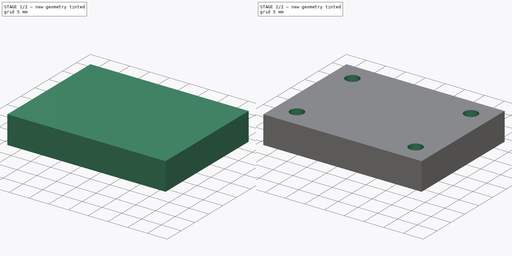
[diagram: build sequence overview — one tinted view per stage of 2, left to right]
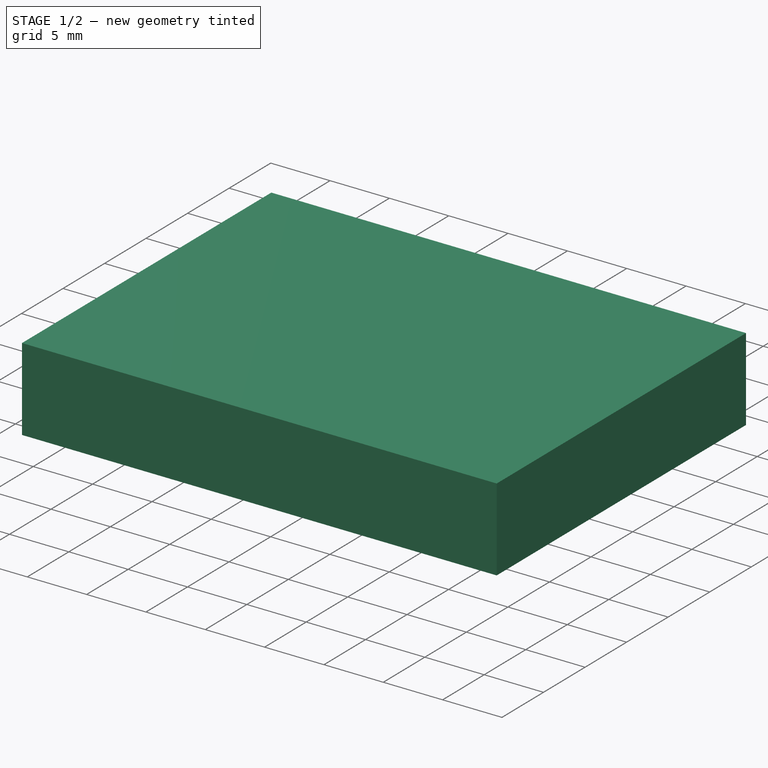
[diagram: stage 1 of 2 — iso view after this stage's code; geometry added in this stage tinted green]
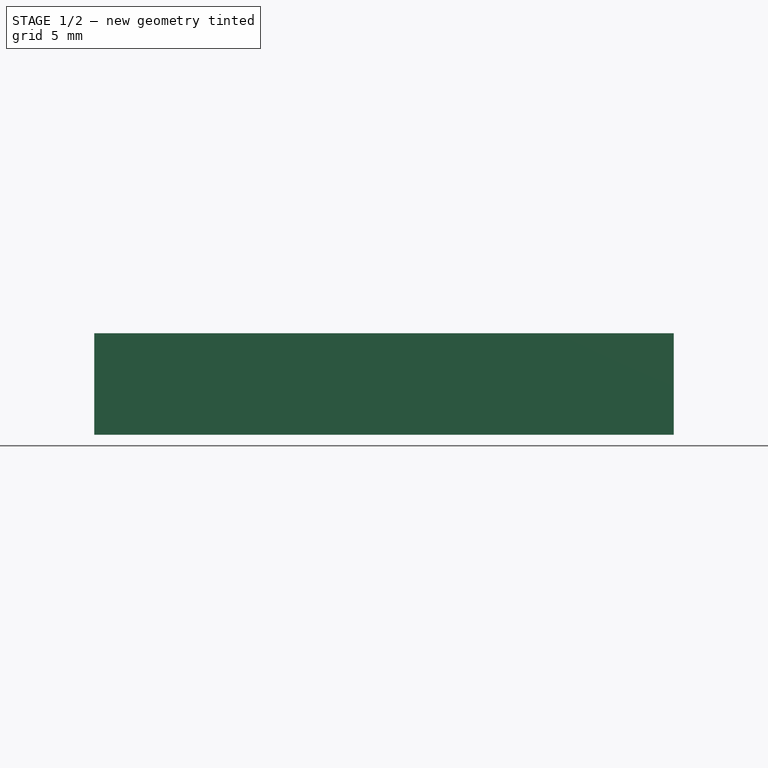
[diagram: stage 1 of 2 — front view after this stage's code; geometry added in this stage tinted green]
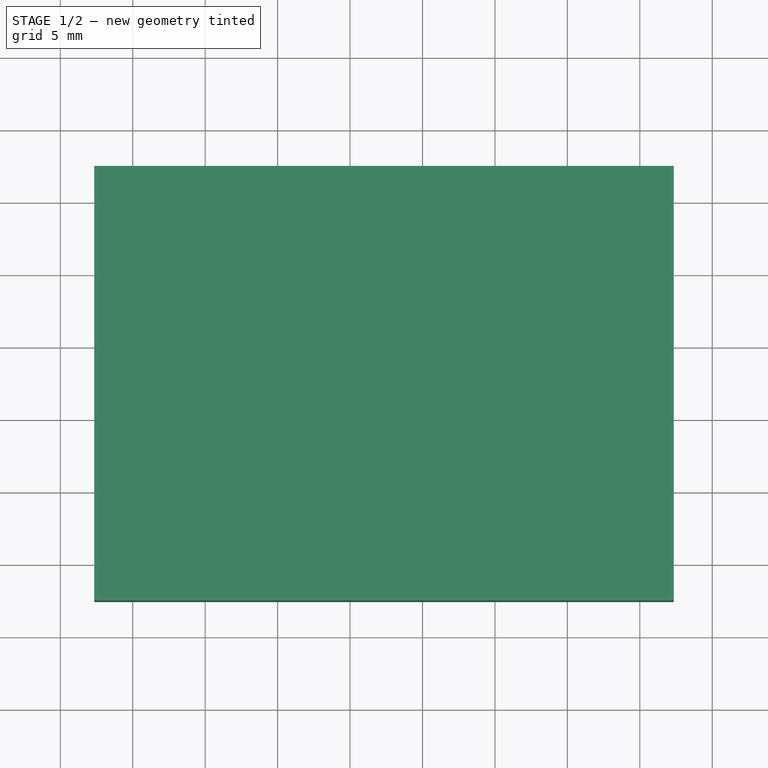
[diagram: stage 1 of 2 — top view after this stage's code; geometry added in this stage tinted green]
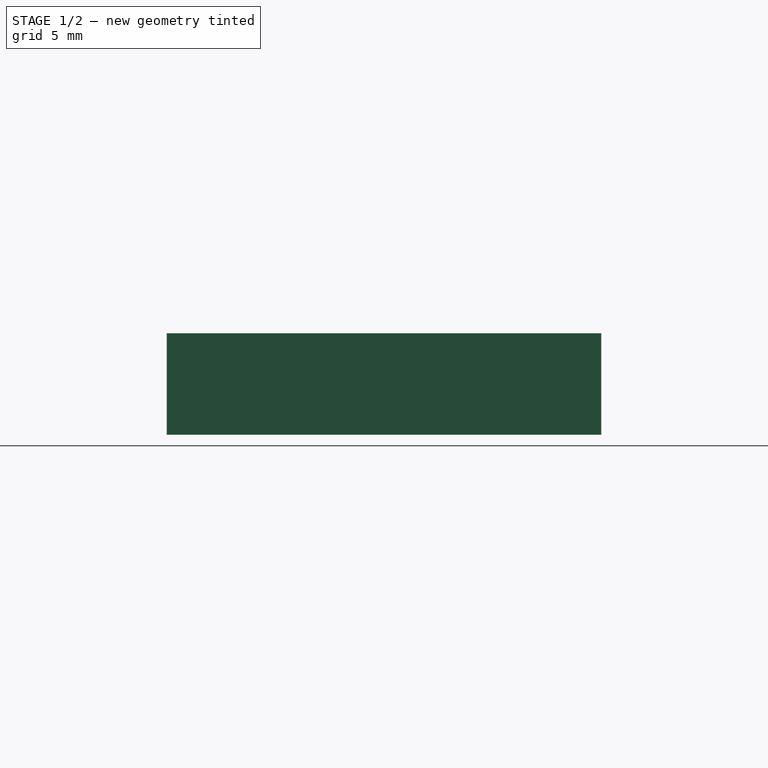
[diagram: stage 1 of 2 — right view after this stage's code; geometry added in this stage tinted green]
FCSTD DOCUMENT  (FreeCAD 1.0R39319 (Git))
Label: RollerMod
License: All rights reserved
LicenseURL: https://en.wikipedia.org/wiki/All_rights_reserved
objects: Part::Feature×2, Sketcher::SketchObject×2, App::Part×1, PartDesign::ShapeBinder×1, PartDesign::Pad×1, PartDesign::Pocket×1, PartDesign::Body×1
note: 14 computed .brp shape members not serialized (recipe doc carries the construction recipe); baked Part::Feature solids carry a one-line shape summary decoded from their .brp

FEATURE [Part::Feature] Part__Feature  label="Roller_Sphere"
  Placement = pos=(-17.6587,-2.55184,5.07136) rot=(0,1,0;0.261799rad)
  shape: bbox 20 x 20 x 20 mm, 1 faces (baked)
FEATURE [Part::Feature] Part__Feature001  label="Roller_Housing"
  Placement = pos=(-17.6587,-2.55184,5.07136) rot=(0,0,1;0rad)
  shape: bbox 40.01 x 30.12 x 20.31 mm, 40 faces (baked)
FEATURE [App::Part] Assembly_1  label="Assembly 1"
  Group = -> [Part__Feature,Part__Feature001]
  Origin = -> Origin
FEATURE [PartDesign::ShapeBinder] CopyPart__Feature001
  Placement = pos=(-17.6587,-2.55184,5.07136) rot=(0,0,1;0rad)
  TraceSupport = false
FEATURE [Sketcher::SketchObject] Sketch
  ArcFitTolerance = 1e-06
  AttachmentSupport = -> [CopyPart__Feature001]
  FullyConstrained = true
  MakeInternals = false
  MapMode = 5
  Placement = pos=(-17.6587,-2.55184,-8.22864) rot=(1,0,0;3.14159rad)
  sketch-geometry (4):
    g0: LineSegment StartX=-20 StartY=15 StartZ=0 EndX=-20 EndY=-15 EndZ=0
    g1: LineSegment StartX=-20 StartY=-15 StartZ=0 EndX=20 EndY=-15 EndZ=0
    g2: LineSegment StartX=20 StartY=-15 StartZ=0 EndX=20 EndY=15 EndZ=0
    g3: LineSegment StartX=20 StartY=15 StartZ=0 EndX=-20 EndY=15 EndZ=0
  constraints (11):
    c: Coincident(g0,g1)
    c: Coincident(g1,g2)
    c: Coincident(g2,g3)
    c: Coincident(g3,g0)
    c: Vertical(g0)
    c: Vertical(g2)
    c: Horizontal(g1)
    c: Horizontal(g3)
    c: Distance(g1) = 40
    c: Distance(g2) = 30
    c: Symmetric(g1,g0,g-1)
FEATURE [PartDesign::Pad] Pad
  Direction = (0,0,-1)
  Length = 7
  Length2 = 10
  Placement = pos=(-17.6587,-2.55184,5.07136) rot=(0,0,1;0rad)
  Profile = -> Sketch
  ReferenceAxis = -> Sketch [N_Axis]
  Refine = true
  Suppressed = false
  Type = 0
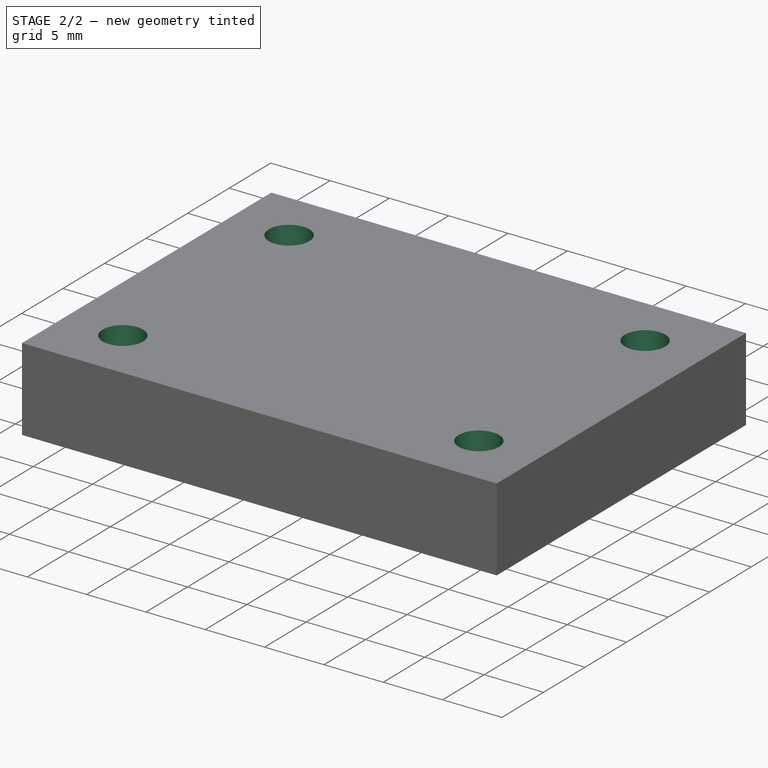
[diagram: stage 2 of 2 — iso view after this stage's code; geometry added in this stage tinted green]
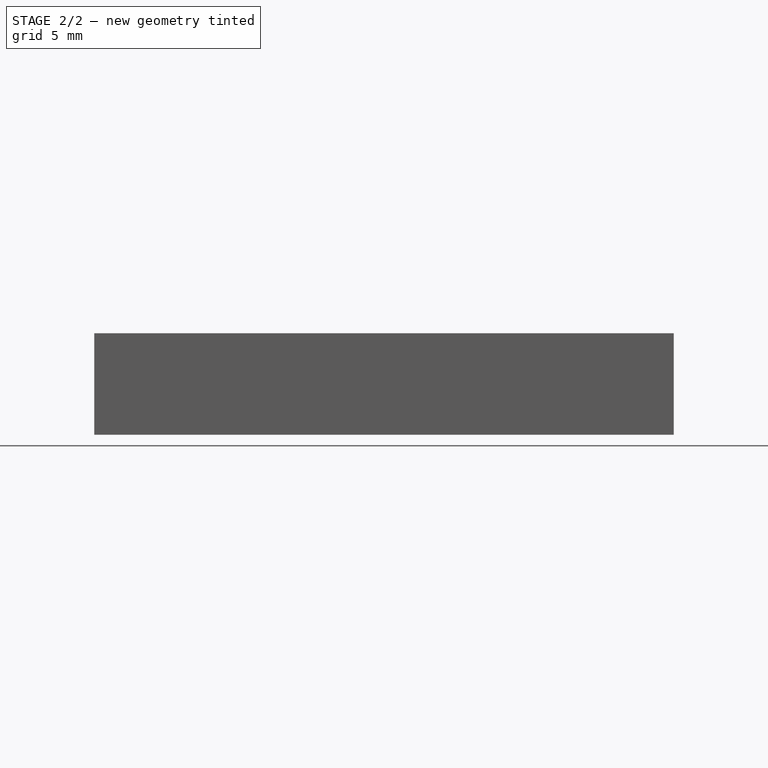
[diagram: stage 2 of 2 — front view after this stage's code; geometry added in this stage tinted green]
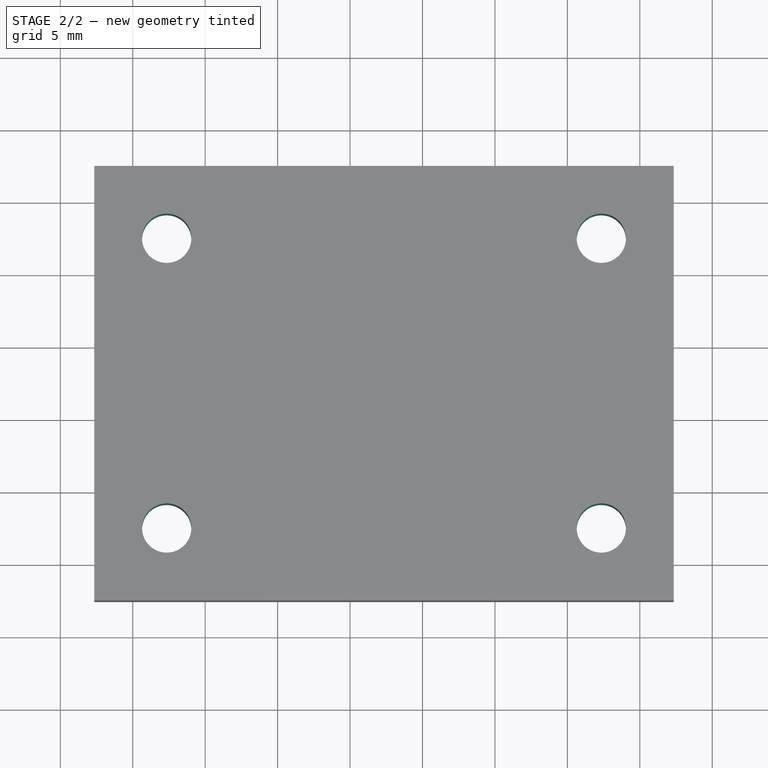
[diagram: stage 2 of 2 — top view after this stage's code; geometry added in this stage tinted green]
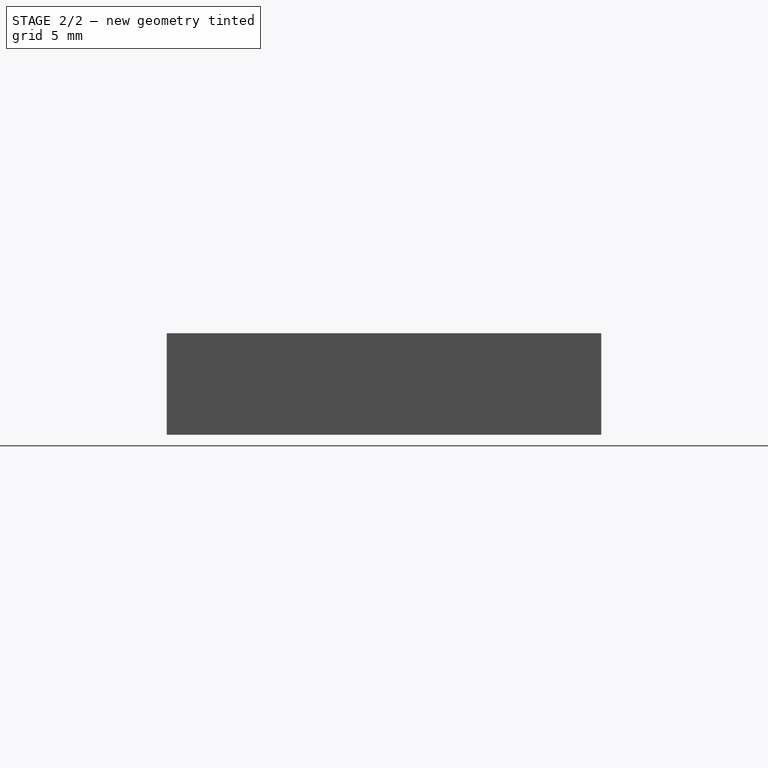
[diagram: stage 2 of 2 — right view after this stage's code; geometry added in this stage tinted green]
FEATURE [Sketcher::SketchObject] Sketch001
  ArcFitTolerance = 1e-06
  AttachmentSupport = -> [Pad]
  FullyConstrained = true
  MakeInternals = false
  MapMode = 5
  Placement = pos=(-17.6587,-2.55184,-8.22864) rot=(0,0,1;0rad)
  sketch-geometry (4):
    g0: Circle CenterX=-15 CenterY=10 CenterZ=0 NormalX=0 NormalY=0 NormalZ=1 AngleXU=0 Radius=1.7
    g1: Circle CenterX=15 CenterY=10 CenterZ=0 NormalX=0 NormalY=0 NormalZ=1 AngleXU=0 Radius=1.7
    g2: Circle CenterX=15 CenterY=-10 CenterZ=0 NormalX=0 NormalY=0 NormalZ=1 AngleXU=0 Radius=1.7
    g3: Circle CenterX=-15 CenterY=-10 CenterZ=0 NormalX=0 NormalY=0 NormalZ=1 AngleXU=0 Radius=1.7
  constraints (9):
    c: Equal(g2,g3)
    c: Equal(g2,g0)
    c: Equal(g2,g1)
    c: Diameter(g2) = 3.4
    c: Symmetric(g3,g0,g-1)
    c: Symmetric(g3,g2,g-2)
    c: Symmetric(g1,g2,g-1)
    c: DistanceX(g3,g-1) = 15
    c: DistanceY(g3,g-1) = 10
FEATURE [PartDesign::Pocket] Pocket
  BaseFeature = -> Pad
  Direction = (0,0,-1)
  Length = 5
  Length2 = 5
  Placement = pos=(-17.6587,-2.55184,5.07136) rot=(0,0,1;0rad)
  Profile = -> Sketch001
  ReferenceAxis = -> Sketch001 [N_Axis]
  Refine = true
  Suppressed = false
  Type = 1
FEATURE [PartDesign::Body] Body  label="LiftPad"
  AllowCompound = false
  Group = -> [CopyPart__Feature001,Sketch,Pad,Sketch001,Pocket]
  Origin = -> Origin001
  Tip = -> Pocket
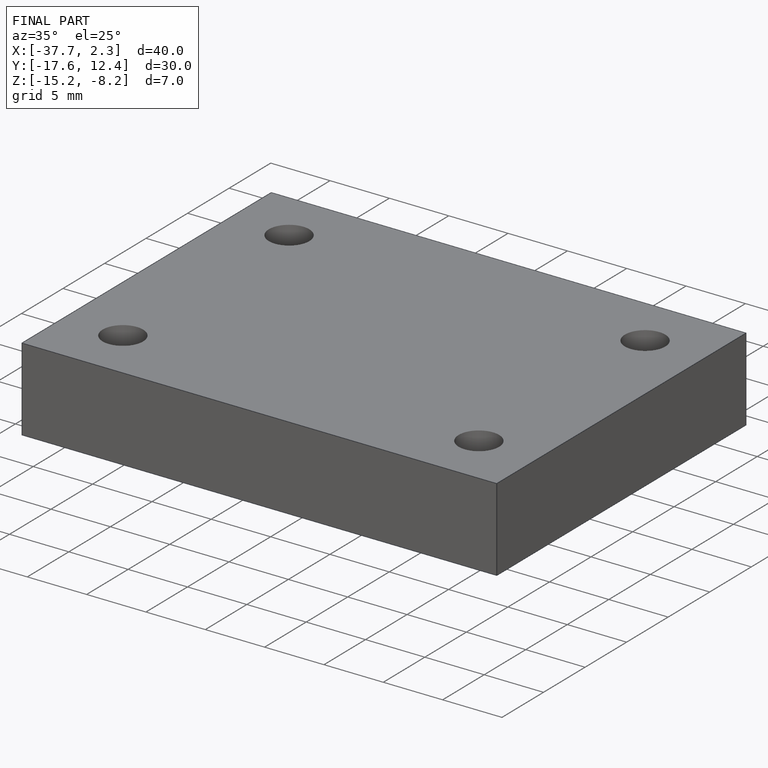
[diagram: finished part — iso view with bounding-box wireframe]
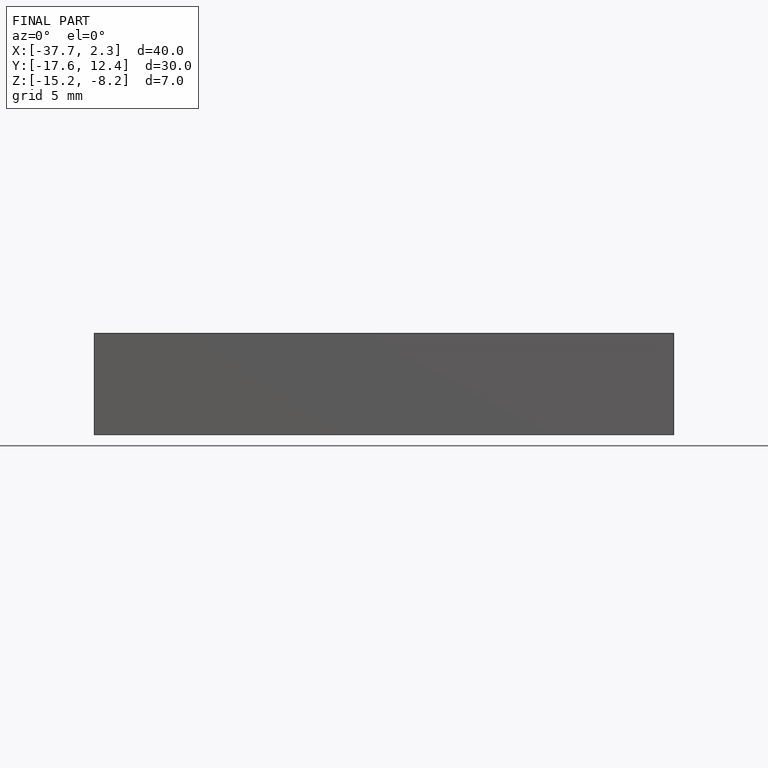
[diagram: finished part — front view with bounding-box wireframe]
